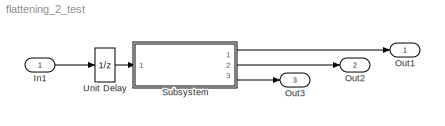
MODEL flattening_2_test
KIND model
BLOCK [Inport] In1
  IconDisplay = Port number
  SID = 1
BLOCK [Outport] Out1
  IconDisplay = Port number
  SID = 15
BLOCK [Outport] Out2
  IconDisplay = Port number
  Port = 2
  SID = 16
BLOCK [Outport] Out3
  IconDisplay = Port number
  Port = 3
  SID = 17
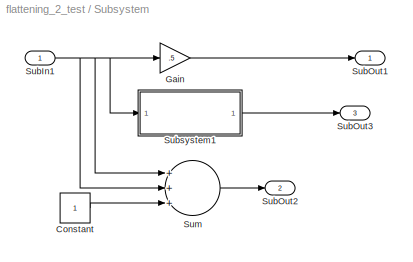
BLOCK [SubSystem] Subsystem
  Ports = [1, 3]
  RequestExecContextInheritance = off
  SID = 2
  Variant = off
BLOCK [Constant] Subsystem/Constant
  SID = 4
BLOCK [Gain] Subsystem/Gain
  Gain = .5
  OutDataTypeStr = Inherit: Inherit via internal rule
  ParamDataTypeStr = Inherit: Inherit via internal rule
  SID = 5
  SaturateOnIntegerOverflow = off
BLOCK [Inport] Subsystem/SubIn1
  IconDisplay = Port number
  SID = 3
BLOCK [Outport] Subsystem/SubOut1
  IconDisplay = Port number
  SID = 11
BLOCK [Outport] Subsystem/SubOut2
  IconDisplay = Port number
  Port = 2
  SID = 12
BLOCK [Outport] Subsystem/SubOut3
  IconDisplay = Port number
  Port = 3
  SID = 13
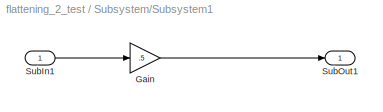
BLOCK [SubSystem] Subsystem/Subsystem1
  Ports = [1, 1]
  RequestExecContextInheritance = off
  SID = 6
  Variant = off
BLOCK [Gain] Subsystem/Subsystem1/Gain
  Gain = .5
  OutDataTypeStr = Inherit: Inherit via internal rule
  ParamDataTypeStr = Inherit: Inherit via internal rule
  SID = 8
  SaturateOnIntegerOverflow = off
BLOCK [Inport] Subsystem/Subsystem1/SubIn1
  IconDisplay = Port number
  SID = 7
BLOCK [Outport] Subsystem/Subsystem1/SubOut1
  IconDisplay = Port number
  SID = 9
BLOCK [Sum] Subsystem/Sum
  InputSameDT = off
  Inputs = +++
  OutDataTypeStr = Inherit: Inherit via internal rule
  Ports = [3, 1]
  SID = 10
  SaturateOnIntegerOverflow = off
BLOCK [UnitDelay] Unit Delay
  SID = 14
LINE In1:1 -> Unit Delay:1
LINE Subsystem/Constant:1 -> Subsystem/Sum:3
LINE Subsystem/Gain:1 -> Subsystem/SubOut1:1
NET Subsystem/SubIn1:1 -> Subsystem/Gain:1, Subsystem/Subsystem1:1, Subsystem/Sum:1, Subsystem/Sum:2
LINE Subsystem/Subsystem1/Gain:1 -> Subsystem/Subsystem1/SubOut1:1
LINE Subsystem/Subsystem1/SubIn1:1 -> Subsystem/Subsystem1/Gain:1
LINE Subsystem/Subsystem1:1 -> Subsystem/SubOut3:1
LINE Subsystem/Sum:1 -> Subsystem/SubOut2:1
LINE Subsystem:1 -> Out1:1
LINE Subsystem:2 -> Out2:1
LINE Subsystem:3 -> Out3:1
LINE Unit Delay:1 -> Subsystem:1
note: NET lines group one-source signal fan-out (src -> all destinations, sorted); 1:1 wires keep LINE
